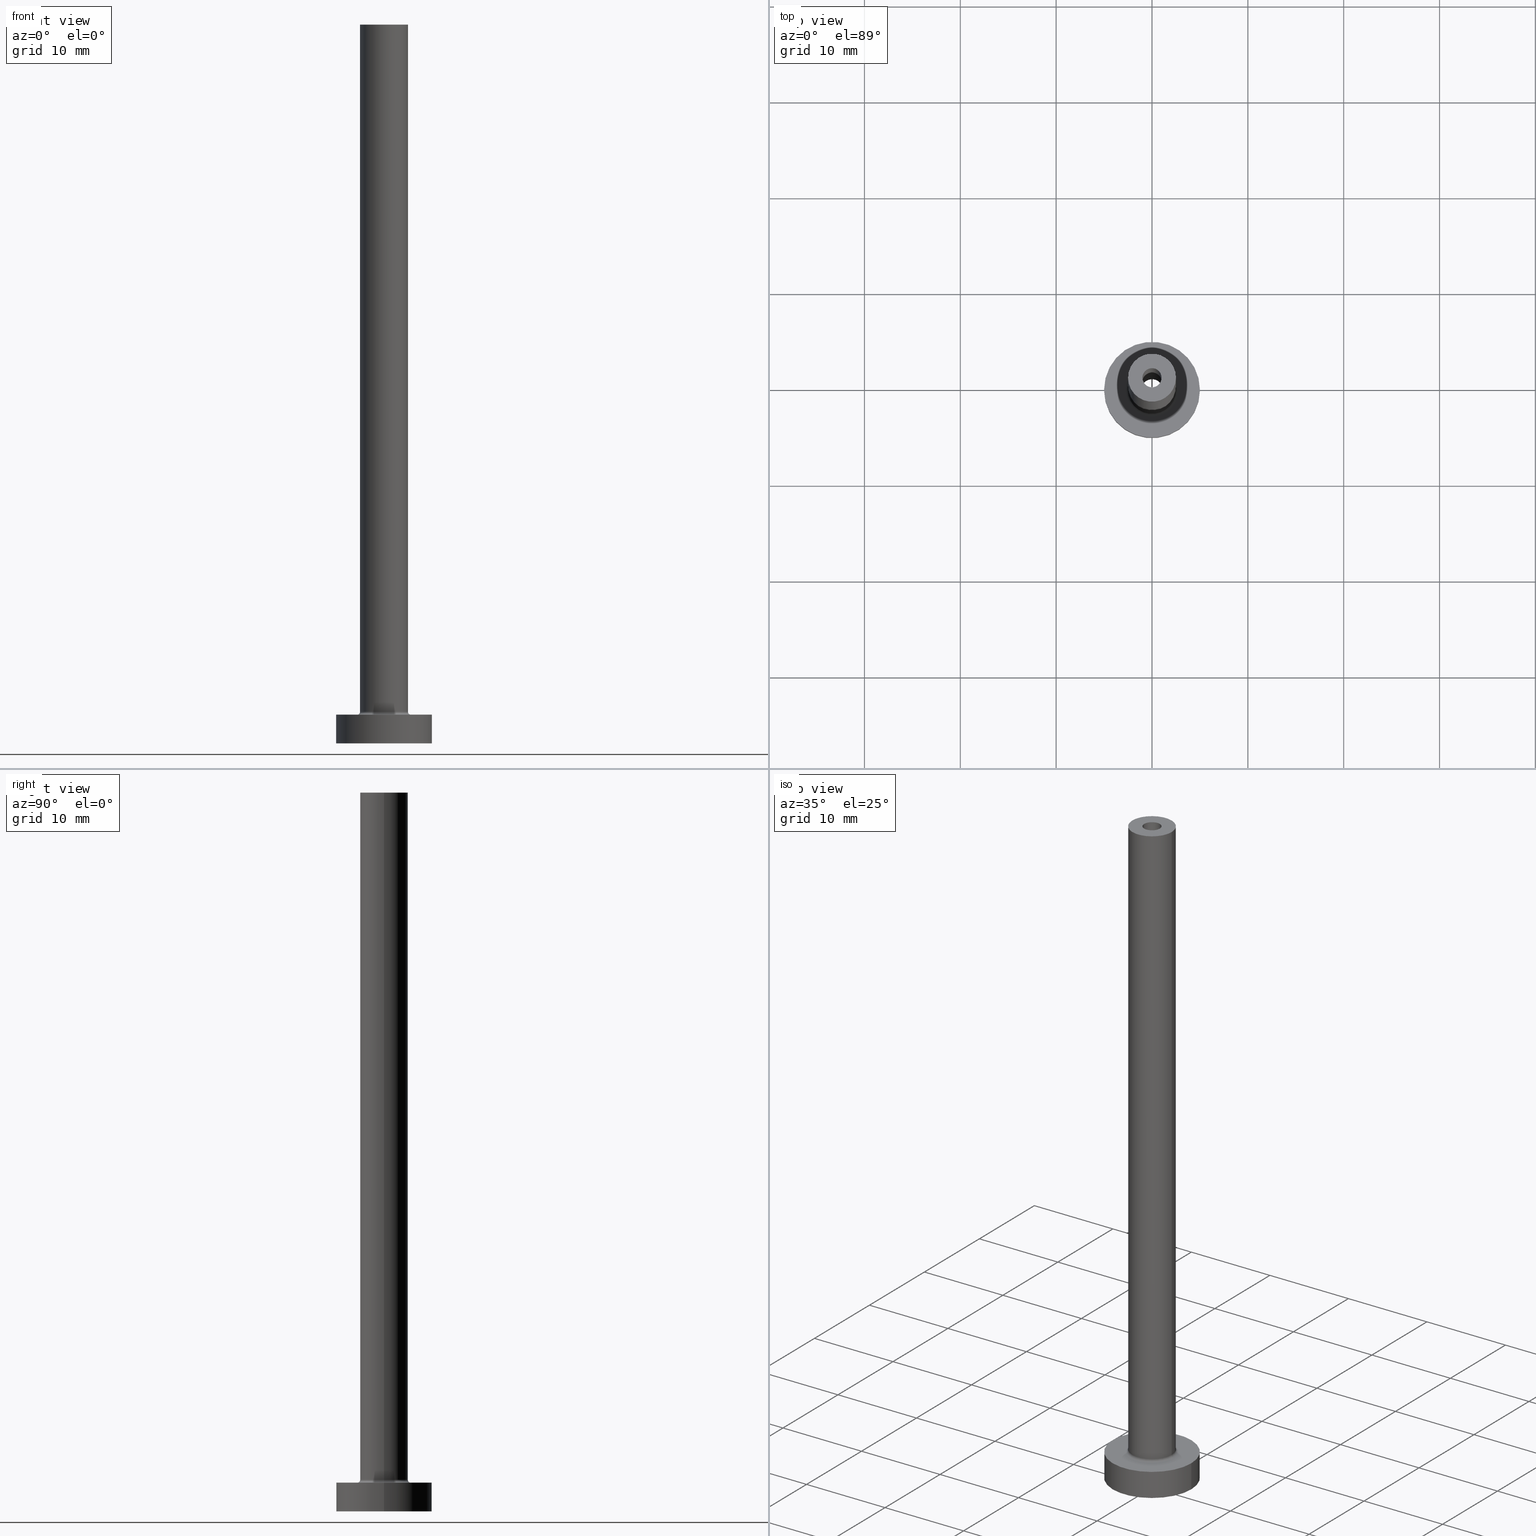
[diagram: canonical four-view strip — front | top / right | iso, engineering-drawing reading convention]
A machine part, canonical four-view strip (front | top / right | iso — engineering-drawing reading convention). The complete STEP part file that produces these views, byte-faithful:
ISO-10303-21;
HEADER;
FILE_DESCRIPTION (( 'STEP AP203' ),
    '1' );
FILE_NAME ('b0e8.STEP',
    '2025-12-03T11:42:33',
    ( '' ),
    ( '' ),
    'SwSTEP 2.0',
    'SolidWorks 2019',
    '' );
FILE_SCHEMA (( 'CONFIG_CONTROL_DESIGN' ));
ENDSEC;

DATA;
#1 = DIRECTION ( 'NONE',  ( 0.000000000000000000, 0.000000000000000000, 1.000000000000000000 ) ) ;
#2 = CARTESIAN_POINT ( 'NONE',  ( 5.000000000000000000, 6.123233995736766282E-16, 3.000000000000000000 ) ) ;
#3 = DIRECTION ( 'NONE',  ( 1.000000000000000000, 0.000000000000000000, -0.000000000000000000 ) ) ;
#4 = LINE ( 'NONE', #353, #279 ) ;
#5 = CC_DESIGN_DATE_AND_TIME_ASSIGNMENT ( #184, #108, ( #321 ) ) ;
#6 = CARTESIAN_POINT ( 'NONE',  ( -5.000000000000000000, 0.000000000000000000, 0.000000000000000000 ) ) ;
#7 = DIRECTION ( 'NONE',  ( 0.000000000000000000, 0.000000000000000000, -1.000000000000000000 ) ) ;
#8 = CIRCLE ( 'NONE', #197, 1.000000000000000000 ) ;
#9 = DIRECTION ( 'NONE',  ( -1.000000000000000000, 0.000000000000000000, 0.000000000000000000 ) ) ;
#10 = EDGE_CURVE ( 'NONE', #285, #47, #221, .T. ) ;
#11 = DIRECTION ( 'NONE',  ( 0.000000000000000000, 0.000000000000000000, 1.000000000000000000 ) ) ;
#12 = ORIENTED_EDGE ( 'NONE', *, *, #452, .F. ) ;
#13 = CC_DESIGN_SECURITY_CLASSIFICATION ( #321, ( #252 ) ) ;
#14 = DIRECTION ( 'NONE',  ( -1.000000000000000000, 0.000000000000000000, 0.000000000000000000 ) ) ;
#15 = ORIENTED_EDGE ( 'NONE', *, *, #437, .F. ) ;
#16 = ORIENTED_EDGE ( 'NONE', *, *, #362, .F. ) ;
#17 = DIRECTION ( 'NONE',  ( -1.000000000000000000, 1.224646799147353207E-16, 0.000000000000000000 ) ) ;
#18 = EDGE_CURVE ( 'NONE', #47, #415, #63, .T. ) ;
#19 = ORIENTED_EDGE ( 'NONE', *, *, #82, .F. ) ;
#20 =( NAMED_UNIT ( * ) SI_UNIT ( $, .STERADIAN. ) SOLID_ANGLE_UNIT ( ) );
#21 = VERTEX_POINT ( 'NONE', #142 ) ;
#22 = VERTEX_POINT ( 'NONE', #382 ) ;
#23 = PERSON_AND_ORGANIZATION ( #355, #455 ) ;
#24 = EDGE_CURVE ( 'NONE', #413, #94, #172, .T. ) ;
#25 = ORIENTED_EDGE ( 'NONE', *, *, #404, .F. ) ;
#26 = CALENDAR_DATE ( 2025, 3, 12 ) ;
#27 = DIRECTION ( 'NONE',  ( -1.000000000000000000, 0.000000000000000000, 0.000000000000000000 ) ) ;
#28 = APPROVAL_DATE_TIME ( #116, #407 ) ;
#29 = DIRECTION ( 'NONE',  ( -0.000000000000000000, -0.000000000000000000, -1.000000000000000000 ) ) ;
#30 = PERSON_AND_ORGANIZATION ( #355, #455 ) ;
#31 = EDGE_LOOP ( 'NONE', ( #91, #229 ) ) ;
#32 = CIRCLE ( 'NONE', #427, 5.000000000000000000 ) ;
#33 = PRODUCT_DEFINITION ( 'NEZN�M�', '', #252, #409 ) ;
#34 = DIRECTION ( 'NONE',  ( 0.000000000000000000, 0.000000000000000000, 1.000000000000000000 ) ) ;
#35 = AXIS2_PLACEMENT_3D ( 'NONE', #80, #431, #42 ) ;
#36 = DIRECTION ( 'NONE',  ( 0.000000000000000000, 0.000000000000000000, 1.000000000000000000 ) ) ;
#37 = DIRECTION ( 'NONE',  ( 0.000000000000000000, 0.000000000000000000, 1.000000000000000000 ) ) ;
#38 = DIRECTION ( 'NONE',  ( -0.000000000000000000, -0.000000000000000000, -1.000000000000000000 ) ) ;
#39 = SECURITY_CLASSIFICATION_LEVEL ( 'unclassified' ) ;
#40 = CC_DESIGN_PERSON_AND_ORGANIZATION_ASSIGNMENT ( #378, #346, ( #384 ) ) ;
#41 = LINE ( 'NONE', #222, #137 ) ;
#42 = DIRECTION ( 'NONE',  ( -1.000000000000000000, 0.000000000000000000, 0.000000000000000000 ) ) ;
#43 = CIRCLE ( 'NONE', #327, 1.149999999999999911 ) ;
#44 = VECTOR ( 'NONE', #441, 1000.000000000000000 ) ;
#45 = LINE ( 'NONE', #326, #293 ) ;
#46 = DIRECTION ( 'NONE',  ( 0.000000000000000000, 0.000000000000000000, 1.000000000000000000 ) ) ;
#47 = VERTEX_POINT ( 'NONE', #278 ) ;
#48 = CARTESIAN_POINT ( 'NONE',  ( 0.000000000000000000, 0.000000000000000000, 75.00000000000001421 ) ) ;
#49 = ORIENTED_EDGE ( 'NONE', *, *, #272, .T. ) ;
#50 = CARTESIAN_POINT ( 'NONE',  ( 0.000000000000000000, 0.000000000000000000, 0.000000000000000000 ) ) ;
#51 = CIRCLE ( 'NONE', #257, 5.000000000000000000 ) ;
#52 = ORIENTED_EDGE ( 'NONE', *, *, #324, .T. ) ;
#53 = ADVANCED_FACE ( 'NONE', ( #151 ), #287, .T. ) ;
#54 = VERTEX_POINT ( 'NONE', #242 ) ;
#55 = CARTESIAN_POINT ( 'NONE',  ( -2.799999999999999822, 3.429011037612588783E-16, 3.299999999999997158 ) ) ;
#56 = EDGE_LOOP ( 'NONE', ( #345, #12 ) ) ;
#57 = LINE ( 'NONE', #411, #44 ) ;
#58 = AXIS2_PLACEMENT_3D ( 'NONE', #103, #149, #387 ) ;
#59 = EDGE_CURVE ( 'NONE', #413, #54, #348, .T. ) ;
#60 = ORIENTED_EDGE ( 'NONE', *, *, #10, .T. ) ;
#61 = APPLICATION_PROTOCOL_DEFINITION ( 'international standard', 'config_control_design', 1994, #294 ) ;
#62 = VERTEX_POINT ( 'NONE', #385 ) ;
#63 = LINE ( 'NONE', #461, #227 ) ;
#64 = MECHANICAL_CONTEXT ( 'NONE', #294, 'mechanical' ) ;
#65 = AXIS2_PLACEMENT_3D ( 'NONE', #177, #38, #210 ) ;
#66 = ORIENTED_EDGE ( 'NONE', *, *, #213, .T. ) ;
#67 = AXIS2_PLACEMENT_3D ( 'NONE', #201, #100, #204 ) ;
#68 = ADVANCED_FACE ( 'NONE', ( #456 ), #429, .T. ) ;
#69 = FACE_OUTER_BOUND ( 'NONE', #152, .T. ) ;
#70 = DIRECTION ( 'NONE',  ( -0.000000000000000000, -0.000000000000000000, -1.000000000000000000 ) ) ;
#71 = COORDINATED_UNIVERSAL_TIME_OFFSET ( 1, 0, .AHEAD. ) ;
#72 = DIRECTION ( 'NONE',  ( 1.000000000000000000, 0.000000000000000000, -0.000000000000000000 ) ) ;
#73 = AXIS2_PLACEMENT_3D ( 'NONE', #322, #392, #389 ) ;
#74 = CARTESIAN_POINT ( 'NONE',  ( 0.000000000000000000, 0.000000000000000000, 75.00000000000001421 ) ) ;
#75 = EDGE_CURVE ( 'NONE', #417, #205, #43, .T. ) ;
#76 = ORIENTED_EDGE ( 'NONE', *, *, #207, .F. ) ;
#77 = FACE_OUTER_BOUND ( 'NONE', #160, .T. ) ;
#78 = PERSON_AND_ORGANIZATION ( #355, #455 ) ;
#79 = DIRECTION ( 'NONE',  ( 1.000000000000000000, 0.000000000000000000, 0.000000000000000000 ) ) ;
#80 = CARTESIAN_POINT ( 'NONE',  ( 0.000000000000000000, 0.000000000000000000, 43.25269119345811930 ) ) ;
#81 = DIRECTION ( 'NONE',  ( 0.000000000000000000, 0.000000000000000000, -1.000000000000000000 ) ) ;
#82 = EDGE_CURVE ( 'NONE', #22, #347, #4, .T. ) ;
#83 = ADVANCED_BREP_SHAPE_REPRESENTATION ( 'b0e8', ( #260, #329 ), #305 ) ;
#84 = FACE_OUTER_BOUND ( 'NONE', #31, .T. ) ;
#85 = ORIENTED_EDGE ( 'NONE', *, *, #161, .T. ) ;
#86 = FACE_OUTER_BOUND ( 'NONE', #167, .T. ) ;
#87 = ORIENTED_EDGE ( 'NONE', *, *, #121, .T. ) ;
#88 = FACE_BOUND ( 'NONE', #129, .T. ) ;
#89 = CC_DESIGN_PERSON_AND_ORGANIZATION_ASSIGNMENT ( #30, #390, ( #321 ) ) ;
#90 = LOCAL_TIME ( 12, 42, 33.00000000000000000, #239 ) ;
#91 = ORIENTED_EDGE ( 'NONE', *, *, #280, .T. ) ;
#92 = CARTESIAN_POINT ( 'NONE',  ( -2.500000000000000000, 0.000000000000000000, 3.299999999999997158 ) ) ;
#93 = UNCERTAINTY_MEASURE_WITH_UNIT (LENGTH_MEASURE( 1.000000000000000082E-05 ), #136, 'distance_accuracy_value', 'NONE');
#94 = VERTEX_POINT ( 'NONE', #105 ) ;
#95 = PERSON_AND_ORGANIZATION ( #355, #455 ) ;
#96 = EDGE_CURVE ( 'NONE', #62, #163, #264, .T. ) ;
#97 = ORIENTED_EDGE ( 'NONE', *, *, #24, .T. ) ;
#98 = DIRECTION ( 'NONE',  ( 0.000000000000000000, 0.000000000000000000, 1.000000000000000000 ) ) ;
#99 = EDGE_LOOP ( 'NONE', ( #166, #203 ) ) ;
#100 = DIRECTION ( 'NONE',  ( 0.000000000000000000, 0.000000000000000000, 1.000000000000000000 ) ) ;
#101 = ORIENTED_EDGE ( 'NONE', *, *, #24, .F. ) ;
#102 = COORDINATED_UNIVERSAL_TIME_OFFSET ( 1, 0, .AHEAD. ) ;
#103 = CARTESIAN_POINT ( 'NONE',  ( 2.799999999999999822, 0.000000000000000000, 3.299999999999997158 ) ) ;
#104 = EDGE_CURVE ( 'NONE', #415, #21, #342, .T. ) ;
#105 = CARTESIAN_POINT ( 'NONE',  ( -5.000000000000000000, 0.000000000000000000, 3.000000000000000000 ) ) ;
#106 = APPROVAL_DATE_TIME ( #243, #251 ) ;
#107 = DIRECTION ( 'NONE',  ( 0.000000000000000000, 0.000000000000000000, 1.000000000000000000 ) ) ;
#108 = DATE_TIME_ROLE ( 'classification_date' ) ;
#109 = CIRCLE ( 'NONE', #457, 2.500000000000000000 ) ;
#110 = CARTESIAN_POINT ( 'NONE',  ( 0.000000000000000000, 0.000000000000000000, 3.299999999999997158 ) ) ;
#111 = ADVANCED_FACE ( 'NONE', ( #458 ), #422, .T. ) ;
#112 = LINE ( 'NONE', #282, #442 ) ;
#113 = COORDINATED_UNIVERSAL_TIME_OFFSET ( 1, 0, .AHEAD. ) ;
#114 = AXIS2_PLACEMENT_3D ( 'NONE', #183, #144, #246 ) ;
#115 = DIRECTION ( 'NONE',  ( 1.000000000000000000, 0.000000000000000000, 0.000000000000000000 ) ) ;
#116 = DATE_AND_TIME ( #288, #155 ) ;
#117 = APPLICATION_CONTEXT ( 'configuration controlled 3d designs of mechanical parts and assemblies' ) ;
#118 = CARTESIAN_POINT ( 'NONE',  ( 2.799999999999999822, 0.000000000000000000, 2.999999999999998668 ) ) ;
#119 = DIRECTION ( 'NONE',  ( 0.000000000000000000, 0.000000000000000000, 1.000000000000000000 ) ) ;
#120 = CYLINDRICAL_SURFACE ( 'NONE', #388, 1.000000000000000000 ) ;
#121 = EDGE_CURVE ( 'NONE', #347, #261, #202, .T. ) ;
#122 = AXIS2_PLACEMENT_3D ( 'NONE', #330, #250, #395 ) ;
#123 = PLANE ( 'NONE',  #309 ) ;
#124 = APPROVAL_PERSON_ORGANIZATION ( #23, #337, #170 ) ;
#125 = FACE_BOUND ( 'NONE', #238, .T. ) ;
#126 = EDGE_LOOP ( 'NONE', ( #135, #169 ) ) ;
#127 = ADVANCED_FACE ( 'NONE', ( #69 ), #302, .F. ) ;
#128 = PLANE ( 'NONE',  #331 ) ;
#129 = EDGE_LOOP ( 'NONE', ( #85, #454 ) ) ;
#130 = ORIENTED_EDGE ( 'NONE', *, *, #404, .T. ) ;
#131 = VECTOR ( 'NONE', #178, 1000.000000000000000 ) ;
#132 = CIRCLE ( 'NONE', #254, 0.2999999999999999334 ) ;
#133 = ORIENTED_EDGE ( 'NONE', *, *, #418, .F. ) ;
#134 = APPROVAL_ROLE ( '' ) ;
#135 = ORIENTED_EDGE ( 'NONE', *, *, #324, .F. ) ;
#136 =( LENGTH_UNIT ( ) NAMED_UNIT ( * ) SI_UNIT ( .MILLI., .METRE. ) );
#137 = VECTOR ( 'NONE', #363, 1000.000000000000000 ) ;
#138 = ORIENTED_EDGE ( 'NONE', *, *, #173, .F. ) ;
#139 = CC_DESIGN_APPROVAL ( #407, ( #321 ) ) ;
#140 = DIRECTION ( 'NONE',  ( 1.000000000000000000, 0.000000000000000000, 0.000000000000000000 ) ) ;
#141 = AXIS2_PLACEMENT_3D ( 'NONE', #364, #228, #14 ) ;
#142 = CARTESIAN_POINT ( 'NONE',  ( -1.000000000000000000, 0.000000000000000000, 40.00000000000000711 ) ) ;
#143 = CIRCLE ( 'NONE', #219, 2.500000000000000000 ) ;
#144 = DIRECTION ( 'NONE',  ( 0.000000000000000000, 0.000000000000000000, 1.000000000000000000 ) ) ;
#145 = PERSON_AND_ORGANIZATION_ROLE ( 'creator' ) ;
#146 = CIRCLE ( 'NONE', #67, 1.149999999999999911 ) ;
#147 = DIRECTION ( 'NONE',  ( 1.000000000000000000, 0.000000000000000000, 0.000000000000000000 ) ) ;
#148 = EDGE_CURVE ( 'NONE', #205, #62, #112, .T. ) ;
#149 = DIRECTION ( 'NONE',  ( 0.000000000000000000, -1.000000000000000000, 0.000000000000000000 ) ) ;
#150 = CARTESIAN_POINT ( 'NONE',  ( -5.000000000000000000, 0.000000000000000000, 3.000000000000000000 ) ) ;
#151 = FACE_OUTER_BOUND ( 'NONE', #275, .T. ) ;
#152 = EDGE_LOOP ( 'NONE', ( #133, #303, #87, #138 ) ) ;
#153 = CIRCLE ( 'NONE', #361, 2.799999999999999822 ) ;
#154 = CARTESIAN_POINT ( 'NONE',  ( 0.000000000000000000, 0.000000000000000000, 0.000000000000000000 ) ) ;
#155 = LOCAL_TIME ( 12, 42, 33.00000000000000000, #113 ) ;
#156 = CARTESIAN_POINT ( 'NONE',  ( 0.000000000000000000, 0.000000000000000000, 3.000000000000000000 ) ) ;
#157 = AXIS2_PLACEMENT_3D ( 'NONE', #48, #162, #438 ) ;
#158 = CARTESIAN_POINT ( 'NONE',  ( 1.000000000000000000, 1.224646799147353207E-16, 40.00000000000000711 ) ) ;
#159 = CARTESIAN_POINT ( 'NONE',  ( 2.500000000000000000, 3.061616997868383141E-16, 3.299999999999997158 ) ) ;
#160 = EDGE_LOOP ( 'NONE', ( #101, #449, #312, #25 ) ) ;
#161 = EDGE_CURVE ( 'NONE', #261, #372, #460, .T. ) ;
#162 = DIRECTION ( 'NONE',  ( 0.000000000000000000, 0.000000000000000000, -1.000000000000000000 ) ) ;
#163 = VERTEX_POINT ( 'NONE', #396 ) ;
#164 = ORIENTED_EDGE ( 'NONE', *, *, #286, .T. ) ;
#165 = DIRECTION ( 'NONE',  ( 0.000000000000000000, 0.000000000000000000, 1.000000000000000000 ) ) ;
#166 = ORIENTED_EDGE ( 'NONE', *, *, #224, .F. ) ;
#167 = EDGE_LOOP ( 'NONE', ( #16, #406, #451, #268 ) ) ;
#168 = PERSON_AND_ORGANIZATION ( #355, #455 ) ;
#169 = ORIENTED_EDGE ( 'NONE', *, *, #267, .F. ) ;
#170 = APPROVAL_ROLE ( '' ) ;
#171 = ORIENTED_EDGE ( 'NONE', *, *, #75, .T. ) ;
#172 = CIRCLE ( 'NONE', #114, 5.000000000000000000 ) ;
#173 = EDGE_CURVE ( 'NONE', #372, #261, #153, .T. ) ;
#174 = DIRECTION ( 'NONE',  ( -0.000000000000000000, -0.000000000000000000, -1.000000000000000000 ) ) ;
#175 = CALENDAR_DATE ( 2025, 3, 12 ) ;
#176 = CARTESIAN_POINT ( 'NONE',  ( 0.000000000000000000, 0.000000000000000000, 0.000000000000000000 ) ) ;
#177 = CARTESIAN_POINT ( 'NONE',  ( 0.000000000000000000, 0.000000000000000000, 75.00000000000001421 ) ) ;
#178 = DIRECTION ( 'NONE',  ( -0.000000000000000000, -0.000000000000000000, -1.000000000000000000 ) ) ;
#179 = AXIS2_PLACEMENT_3D ( 'NONE', #74, #36, #115 ) ;
#180 = DIRECTION ( 'NONE',  ( 0.000000000000000000, 0.000000000000000000, 1.000000000000000000 ) ) ;
#181 = APPROVAL_PERSON_ORGANIZATION ( #168, #251, #134 ) ;
#182 = FACE_OUTER_BOUND ( 'NONE', #240, .T. ) ;
#183 = CARTESIAN_POINT ( 'NONE',  ( 0.000000000000000000, 0.000000000000000000, 3.000000000000000000 ) ) ;
#184 = DATE_AND_TIME ( #175, #352 ) ;
#185 = CYLINDRICAL_SURFACE ( 'NONE', #35, 1.149999999999999911 ) ;
#186 = EDGE_CURVE ( 'NONE', #94, #413, #51, .T. ) ;
#187 = AXIS2_PLACEMENT_3D ( 'NONE', #253, #328, #147 ) ;
#188 = CARTESIAN_POINT ( 'NONE',  ( 0.000000000000000000, 0.000000000000000000, 3.000000000000000000 ) ) ;
#189 = LOCAL_TIME ( 12, 42, 33.00000000000000000, #102 ) ;
#190 = CARTESIAN_POINT ( 'NONE',  ( 1.149999999999999911, 1.408343819019456028E-16, 40.00000000000000711 ) ) ;
#191 = CARTESIAN_POINT ( 'NONE',  ( 0.000000000000000000, 0.000000000000000000, 40.00000000000000711 ) ) ;
#192 = DIRECTION ( 'NONE',  ( 1.000000000000000000, 0.000000000000000000, 0.000000000000000000 ) ) ;
#193 = ADVANCED_FACE ( 'NONE', ( #399 ), #185, .F. ) ;
#194 = CIRCLE ( 'NONE', #453, 5.000000000000000000 ) ;
#195 = DIRECTION ( 'NONE',  ( 1.000000000000000000, 0.000000000000000000, 0.000000000000000000 ) ) ;
#196 = EDGE_LOOP ( 'NONE', ( #380, #97 ) ) ;
#197 = AXIS2_PLACEMENT_3D ( 'NONE', #191, #405, #365 ) ;
#198 = ORIENTED_EDGE ( 'NONE', *, *, #186, .F. ) ;
#199 = DIRECTION ( 'NONE',  ( 1.000000000000000000, 0.000000000000000000, -0.000000000000000000 ) ) ;
#200 = ORIENTED_EDGE ( 'NONE', *, *, #280, .F. ) ;
#201 = CARTESIAN_POINT ( 'NONE',  ( 0.000000000000000000, 0.000000000000000000, 40.00000000000000711 ) ) ;
#202 = CIRCLE ( 'NONE', #58, 0.2999999999999999334 ) ;
#203 = ORIENTED_EDGE ( 'NONE', *, *, #96, .F. ) ;
#204 = DIRECTION ( 'NONE',  ( 1.000000000000000000, 0.000000000000000000, 0.000000000000000000 ) ) ;
#205 = VERTEX_POINT ( 'NONE', #190 ) ;
#206 = CARTESIAN_POINT ( 'NONE',  ( 0.000000000000000000, 0.000000000000000000, 0.000000000000000000 ) ) ;
#207 = EDGE_CURVE ( 'NONE', #417, #163, #41, .T. ) ;
#208 = DIRECTION ( 'NONE',  ( 0.000000000000000000, 0.000000000000000000, -1.000000000000000000 ) ) ;
#209 = CARTESIAN_POINT ( 'NONE',  ( 0.000000000000000000, 0.000000000000000000, 40.00000000000000711 ) ) ;
#210 = DIRECTION ( 'NONE',  ( -1.000000000000000000, 0.000000000000000000, 0.000000000000000000 ) ) ;
#211 = APPROVAL_STATUS ( 'not_yet_approved' ) ;
#212 = TOROIDAL_SURFACE ( 'NONE', #269, 2.799999999999999822, 0.2999999999999999889 ) ;
#213 = EDGE_CURVE ( 'NONE', #285, #21, #45, .T. ) ;
#214 = DIRECTION ( 'NONE',  ( 1.000000000000000000, 0.000000000000000000, 0.000000000000000000 ) ) ;
#215 = PERSON_AND_ORGANIZATION ( #355, #455 ) ;
#216 = FACE_OUTER_BOUND ( 'NONE', #196, .T. ) ;
#217 = ORIENTED_EDGE ( 'NONE', *, *, #452, .T. ) ;
#218 = DIRECTION ( 'NONE',  ( -0.000000000000000000, -0.000000000000000000, -1.000000000000000000 ) ) ;
#219 = AXIS2_PLACEMENT_3D ( 'NONE', #110, #37, #262 ) ;
#220 = CYLINDRICAL_SURFACE ( 'NONE', #393, 5.000000000000000000 ) ;
#221 = CIRCLE ( 'NONE', #179, 1.000000000000000000 ) ;
#222 = CARTESIAN_POINT ( 'NONE',  ( -1.149999999999999911, 0.000000000000000000, 43.25269119345811930 ) ) ;
#223 = PLANE ( 'NONE',  #448 ) ;
#224 = EDGE_CURVE ( 'NONE', #163, #62, #314, .T. ) ;
#225 = CARTESIAN_POINT ( 'NONE',  ( 0.000000000000000000, 0.000000000000000000, 75.00000000000001421 ) ) ;
#226 = CARTESIAN_POINT ( 'NONE',  ( 0.000000000000000000, 0.000000000000000000, 0.000000000000000000 ) ) ;
#227 = VECTOR ( 'NONE', #208, 1000.000000000000000 ) ;
#228 = DIRECTION ( 'NONE',  ( 0.000000000000000000, 0.000000000000000000, -1.000000000000000000 ) ) ;
#229 = ORIENTED_EDGE ( 'NONE', *, *, #432, .T. ) ;
#230 = APPROVAL_DATE_TIME ( #241, #337 ) ;
#231 = CC_DESIGN_DATE_AND_TIME_ASSIGNMENT ( #376, #374, ( #33 ) ) ;
#232 = EDGE_LOOP ( 'NONE', ( #19, #200, #440, #398 ) ) ;
#233 = DIRECTION ( 'NONE',  ( 0.000000000000000000, 0.000000000000000000, 1.000000000000000000 ) ) ;
#234 = ORIENTED_EDGE ( 'NONE', *, *, #59, .F. ) ;
#235 = AXIS2_PLACEMENT_3D ( 'NONE', #354, #34, #319 ) ;
#236 = CC_DESIGN_APPROVAL ( #251, ( #252 ) ) ;
#237 = ADVANCED_FACE ( 'NONE', ( #77 ), #220, .T. ) ;
#238 = EDGE_LOOP ( 'NONE', ( #428, #300 ) ) ;
#239 = COORDINATED_UNIVERSAL_TIME_OFFSET ( 1, 0, .AHEAD. ) ;
#240 = EDGE_LOOP ( 'NONE', ( #265, #217, #298, #377 ) ) ;
#241 = DATE_AND_TIME ( #420, #90 ) ;
#242 = CARTESIAN_POINT ( 'NONE',  ( 5.000000000000000000, 6.123233995736766282E-16, 0.000000000000000000 ) ) ;
#243 = DATE_AND_TIME ( #450, #274 ) ;
#244 = DIRECTION ( 'NONE',  ( -0.000000000000000000, -0.000000000000000000, -1.000000000000000000 ) ) ;
#245 = CC_DESIGN_PERSON_AND_ORGANIZATION_ASSIGNMENT ( #318, #423, ( #252 ) ) ;
#246 = DIRECTION ( 'NONE',  ( 1.000000000000000000, 0.000000000000000000, 0.000000000000000000 ) ) ;
#247 = FACE_OUTER_BOUND ( 'NONE', #126, .T. ) ;
#248 = VERTEX_POINT ( 'NONE', #6 ) ;
#249 = CIRCLE ( 'NONE', #187, 1.000000000000000000 ) ;
#250 = DIRECTION ( 'NONE',  ( -0.000000000000000000, -0.000000000000000000, -1.000000000000000000 ) ) ;
#251 = APPROVAL ( #307, 'NEUR�EN�' ) ;
#252 = PRODUCT_DEFINITION_FORMATION_WITH_SPECIFIED_SOURCE ( 'LIBOVOLN�', '', #384, .NOT_KNOWN. ) ;
#253 = CARTESIAN_POINT ( 'NONE',  ( 0.000000000000000000, 0.000000000000000000, 75.00000000000001421 ) ) ;
#254 = AXIS2_PLACEMENT_3D ( 'NONE', #55, #444, #17 ) ;
#255 = DIRECTION ( 'NONE',  ( 1.000000000000000000, 0.000000000000000000, 0.000000000000000000 ) ) ;
#256 = CARTESIAN_POINT ( 'NONE',  ( 0.000000000000000000, 0.000000000000000000, 75.00000000000001421 ) ) ;
#257 = AXIS2_PLACEMENT_3D ( 'NONE', #290, #119, #255 ) ;
#258 = CYLINDRICAL_SURFACE ( 'NONE', #157, 1.000000000000000000 ) ;
#259 = EDGE_LOOP ( 'NONE', ( #171, #375, #296, #76 ) ) ;
#260 = MANIFOLD_SOLID_BREP ( 'Odebrat vysunut�m4', #424 ) ;
#261 = VERTEX_POINT ( 'NONE', #118 ) ;
#262 = DIRECTION ( 'NONE',  ( 1.000000000000000000, 0.000000000000000000, 0.000000000000000000 ) ) ;
#263 = CYLINDRICAL_SURFACE ( 'NONE', #141, 1.149999999999999911 ) ;
#264 = CIRCLE ( 'NONE', #386, 1.149999999999999911 ) ;
#265 = ORIENTED_EDGE ( 'NONE', *, *, #148, .F. ) ;
#266 = DIRECTION ( 'NONE',  ( 1.000000000000000000, 0.000000000000000000, 0.000000000000000000 ) ) ;
#267 = EDGE_CURVE ( 'NONE', #54, #248, #194, .T. ) ;
#268 = ORIENTED_EDGE ( 'NONE', *, *, #121, .F. ) ;
#269 = AXIS2_PLACEMENT_3D ( 'NONE', #366, #426, #195 ) ;
#270 = EDGE_LOOP ( 'NONE', ( #310, #49, #66, #273 ) ) ;
#271 = CARTESIAN_POINT ( 'NONE',  ( 0.000000000000000000, 0.000000000000000000, 40.00000000000000711 ) ) ;
#272 = EDGE_CURVE ( 'NONE', #47, #285, #249, .T. ) ;
#273 = ORIENTED_EDGE ( 'NONE', *, *, #104, .F. ) ;
#274 = LOCAL_TIME ( 12, 42, 33.00000000000000000, #311 ) ;
#275 = EDGE_LOOP ( 'NONE', ( #343, #306, #164, #15 ) ) ;
#276 = PERSON_AND_ORGANIZATION_ROLE ( 'creator' ) ;
#277 = CARTESIAN_POINT ( 'NONE',  ( 0.000000000000000000, 0.000000000000000000, 3.000000000000000000 ) ) ;
#278 = CARTESIAN_POINT ( 'NONE',  ( 1.000000000000000000, 1.224646799147353207E-16, 75.00000000000001421 ) ) ;
#279 = VECTOR ( 'NONE', #29, 1000.000000000000000 ) ;
#280 = EDGE_CURVE ( 'NONE', #340, #22, #369, .T. ) ;
#281 = VECTOR ( 'NONE', #70, 1000.000000000000000 ) ;
#282 = CARTESIAN_POINT ( 'NONE',  ( 1.149999999999999911, 1.408343819019456028E-16, 43.25269119345811930 ) ) ;
#283 = APPROVAL_ROLE ( '' ) ;
#284 = CARTESIAN_POINT ( 'NONE',  ( 0.000000000000000000, 0.000000000000000000, 75.00000000000001421 ) ) ;
#285 = VERTEX_POINT ( 'NONE', #295 ) ;
#286 = EDGE_CURVE ( 'NONE', #347, #443, #143, .T. ) ;
#287 = CYLINDRICAL_SURFACE ( 'NONE', #65, 2.500000000000000000 ) ;
#288 = CALENDAR_DATE ( 2025, 3, 12 ) ;
#289 = DIRECTION ( 'NONE',  ( 1.000000000000000000, 0.000000000000000000, 0.000000000000000000 ) ) ;
#290 = CARTESIAN_POINT ( 'NONE',  ( 0.000000000000000000, 0.000000000000000000, 3.000000000000000000 ) ) ;
#291 = CARTESIAN_POINT ( 'NONE',  ( 5.000000000000000000, 6.123233995736766282E-16, 3.000000000000000000 ) ) ;
#292 = CARTESIAN_POINT ( 'NONE',  ( -1.149999999999999911, 0.000000000000000000, 40.00000000000000711 ) ) ;
#293 = VECTOR ( 'NONE', #7, 1000.000000000000000 ) ;
#294 = APPLICATION_CONTEXT ( 'configuration controlled 3d designs of mechanical parts and assemblies' ) ;
#295 = CARTESIAN_POINT ( 'NONE',  ( -1.000000000000000000, 0.000000000000000000, 75.00000000000001421 ) ) ;
#296 = ORIENTED_EDGE ( 'NONE', *, *, #96, .T. ) ;
#297 = CARTESIAN_POINT ( 'NONE',  ( -2.799999999999999822, 3.429011037612589276E-16, 2.999999999999998668 ) ) ;
#298 = ORIENTED_EDGE ( 'NONE', *, *, #207, .T. ) ;
#299 = ADVANCED_FACE ( 'NONE', ( #125, #84 ), #223, .T. ) ;
#300 = ORIENTED_EDGE ( 'NONE', *, *, #272, .F. ) ;
#301 = CARTESIAN_POINT ( 'NONE',  ( 0.000000000000000000, 0.000000000000000000, 75.00000000000001421 ) ) ;
#302 = TOROIDAL_SURFACE ( 'NONE', #235, 2.799999999999999822, 0.2999999999999999889 ) ;
#303 = ORIENTED_EDGE ( 'NONE', *, *, #286, .F. ) ;
#304 = FACE_OUTER_BOUND ( 'NONE', #56, .T. ) ;
#305 =( GEOMETRIC_REPRESENTATION_CONTEXT ( 3 ) GLOBAL_UNCERTAINTY_ASSIGNED_CONTEXT ( ( #93 ) ) GLOBAL_UNIT_ASSIGNED_CONTEXT ( ( #136, #341, #20 ) ) REPRESENTATION_CONTEXT ( 'NONE', 'WORKASPACE' ) );
#306 = ORIENTED_EDGE ( 'NONE', *, *, #82, .T. ) ;
#307 = APPROVAL_STATUS ( 'not_yet_approved' ) ;
#308 = ADVANCED_FACE ( 'NONE', ( #182 ), #263, .F. ) ;
#309 = AXIS2_PLACEMENT_3D ( 'NONE', #357, #11, #3 ) ;
#310 = ORIENTED_EDGE ( 'NONE', *, *, #18, .F. ) ;
#311 = COORDINATED_UNIVERSAL_TIME_OFFSET ( 1, 0, .AHEAD. ) ;
#312 = ORIENTED_EDGE ( 'NONE', *, *, #267, .T. ) ;
#313 = PLANE ( 'NONE',  #371 ) ;
#314 = CIRCLE ( 'NONE', #122, 1.149999999999999911 ) ;
#315 = CARTESIAN_POINT ( 'NONE',  ( 0.000000000000000000, 0.000000000000000000, 40.00000000000000711 ) ) ;
#316 = CC_DESIGN_PERSON_AND_ORGANIZATION_ASSIGNMENT ( #95, #276, ( #33 ) ) ;
#317 = DIRECTION ( 'NONE',  ( 1.000000000000000000, 0.000000000000000000, 0.000000000000000000 ) ) ;
#318 = PERSON_AND_ORGANIZATION ( #355, #455 ) ;
#319 = DIRECTION ( 'NONE',  ( 1.000000000000000000, 0.000000000000000000, 0.000000000000000000 ) ) ;
#320 = DIRECTION ( 'NONE',  ( 0.000000000000000000, 0.000000000000000000, 1.000000000000000000 ) ) ;
#321 = SECURITY_CLASSIFICATION ( '', '', #39 ) ;
#322 = CARTESIAN_POINT ( 'NONE',  ( 0.000000000000000000, 0.000000000000000000, 3.000000000000000000 ) ) ;
#323 = CARTESIAN_POINT ( 'NONE',  ( -2.500000000000000000, 0.000000000000000000, 75.00000000000001421 ) ) ;
#324 = EDGE_CURVE ( 'NONE', #248, #54, #32, .T. ) ;
#325 = DIRECTION ( 'NONE',  ( -0.000000000000000000, -0.000000000000000000, -1.000000000000000000 ) ) ;
#326 = CARTESIAN_POINT ( 'NONE',  ( -1.000000000000000000, 0.000000000000000000, 75.00000000000001421 ) ) ;
#327 = AXIS2_PLACEMENT_3D ( 'NONE', #209, #107, #317 ) ;
#328 = DIRECTION ( 'NONE',  ( 0.000000000000000000, 0.000000000000000000, 1.000000000000000000 ) ) ;
#329 = AXIS2_PLACEMENT_3D ( 'NONE', #206, #233, #266 ) ;
#330 = CARTESIAN_POINT ( 'NONE',  ( 0.000000000000000000, 0.000000000000000000, 0.000000000000000000 ) ) ;
#331 = AXIS2_PLACEMENT_3D ( 'NONE', #226, #391, #333 ) ;
#332 = CC_DESIGN_PERSON_AND_ORGANIZATION_ASSIGNMENT ( #78, #145, ( #252 ) ) ;
#333 = DIRECTION ( 'NONE',  ( 1.000000000000000000, 0.000000000000000000, -0.000000000000000000 ) ) ;
#334 = FACE_BOUND ( 'NONE', #99, .T. ) ;
#335 = DIRECTION ( 'NONE',  ( 0.000000000000000000, 0.000000000000000000, 1.000000000000000000 ) ) ;
#336 = CC_DESIGN_APPROVAL ( #337, ( #33 ) ) ;
#337 = APPROVAL ( #344, 'NEUR�EN�' ) ;
#338 = ORIENTED_EDGE ( 'NONE', *, *, #213, .F. ) ;
#339 = ORIENTED_EDGE ( 'NONE', *, *, #356, .T. ) ;
#340 = VERTEX_POINT ( 'NONE', #323 ) ;
#341 =( NAMED_UNIT ( * ) PLANE_ANGLE_UNIT ( ) SI_UNIT ( $, .RADIAN. ) );
#342 = CIRCLE ( 'NONE', #436, 1.000000000000000000 ) ;
#343 = ORIENTED_EDGE ( 'NONE', *, *, #432, .F. ) ;
#344 = APPROVAL_STATUS ( 'not_yet_approved' ) ;
#345 = ORIENTED_EDGE ( 'NONE', *, *, #75, .F. ) ;
#346 = PERSON_AND_ORGANIZATION_ROLE ( 'design_owner' ) ;
#347 = VERTEX_POINT ( 'NONE', #159 ) ;
#348 = LINE ( 'NONE', #2, #281 ) ;
#349 = SHAPE_DEFINITION_REPRESENTATION ( #459, #83 ) ;
#350 = AXIS2_PLACEMENT_3D ( 'NONE', #358, #325, #27 ) ;
#351 = ADVANCED_FACE ( 'NONE', ( #88, #216 ), #123, .T. ) ;
#352 = LOCAL_TIME ( 12, 42, 33.00000000000000000, #71 ) ;
#353 = CARTESIAN_POINT ( 'NONE',  ( 2.500000000000000000, 3.061616997868383141E-16, 75.00000000000001421 ) ) ;
#354 = CARTESIAN_POINT ( 'NONE',  ( 0.000000000000000000, 0.000000000000000000, 3.299999999999997158 ) ) ;
#355 = PERSON ( 'NEUR�EN�', 'NEUR�EN�', 'NEUR�EN�', ('NEUR�EN�'), ('NEUR�EN�'), ('NEUR�EN�') ) ;
#356 = EDGE_CURVE ( 'NONE', #21, #415, #8, .T. ) ;
#357 = CARTESIAN_POINT ( 'NONE',  ( 0.000000000000000000, 0.000000000000000000, 3.000000000000000000 ) ) ;
#358 = CARTESIAN_POINT ( 'NONE',  ( 0.000000000000000000, 0.000000000000000000, 75.00000000000001421 ) ) ;
#359 = DIRECTION ( 'NONE',  ( -1.000000000000000000, 0.000000000000000000, 0.000000000000000000 ) ) ;
#360 = DIRECTION ( 'NONE',  ( 0.000000000000000000, 0.000000000000000000, 1.000000000000000000 ) ) ;
#361 = AXIS2_PLACEMENT_3D ( 'NONE', #188, #433, #79 ) ;
#362 = EDGE_CURVE ( 'NONE', #443, #347, #109, .T. ) ;
#363 = DIRECTION ( 'NONE',  ( 0.000000000000000000, 0.000000000000000000, -1.000000000000000000 ) ) ;
#364 = CARTESIAN_POINT ( 'NONE',  ( 0.000000000000000000, 0.000000000000000000, 43.25269119345811930 ) ) ;
#365 = DIRECTION ( 'NONE',  ( 1.000000000000000000, 0.000000000000000000, 0.000000000000000000 ) ) ;
#366 = CARTESIAN_POINT ( 'NONE',  ( 0.000000000000000000, 0.000000000000000000, 3.299999999999997158 ) ) ;
#367 = ADVANCED_FACE ( 'NONE', ( #400 ), #258, .F. ) ;
#368 = ORIENTED_EDGE ( 'NONE', *, *, #356, .F. ) ;
#369 = CIRCLE ( 'NONE', #430, 2.500000000000000000 ) ;
#370 = CARTESIAN_POINT ( 'NONE',  ( 0.000000000000000000, 0.000000000000000000, 3.299999999999997158 ) ) ;
#371 = AXIS2_PLACEMENT_3D ( 'NONE', #271, #98, #199 ) ;
#372 = VERTEX_POINT ( 'NONE', #297 ) ;
#373 = ORIENTED_EDGE ( 'NONE', *, *, #18, .T. ) ;
#374 = DATE_TIME_ROLE ( 'creation_date' ) ;
#375 = ORIENTED_EDGE ( 'NONE', *, *, #148, .T. ) ;
#376 = DATE_AND_TIME ( #26, #189 ) ;
#377 = ORIENTED_EDGE ( 'NONE', *, *, #224, .T. ) ;
#378 = PERSON_AND_ORGANIZATION ( #355, #455 ) ;
#379 = APPROVAL_PERSON_ORGANIZATION ( #215, #407, #283 ) ;
#380 = ORIENTED_EDGE ( 'NONE', *, *, #186, .T. ) ;
#381 = APPLICATION_PROTOCOL_DEFINITION ( 'international standard', 'config_control_design', 1994, #117 ) ;
#382 = CARTESIAN_POINT ( 'NONE',  ( 2.500000000000000000, 3.061616997868383141E-16, 75.00000000000001421 ) ) ;
#383 = ADVANCED_FACE ( 'NONE', ( #86 ), #212, .F. ) ;
#384 = PRODUCT ( 'b0e8', 'b0e8', '', ( #64 ) ) ;
#385 = CARTESIAN_POINT ( 'NONE',  ( 1.149999999999999911, 1.408343819019456028E-16, 0.000000000000000000 ) ) ;
#386 = AXIS2_PLACEMENT_3D ( 'NONE', #176, #174, #214 ) ;
#387 = DIRECTION ( 'NONE',  ( 0.000000000000000000, 0.000000000000000000, -1.000000000000000000 ) ) ;
#388 = AXIS2_PLACEMENT_3D ( 'NONE', #256, #81, #9 ) ;
#389 = DIRECTION ( 'NONE',  ( 1.000000000000000000, 0.000000000000000000, 0.000000000000000000 ) ) ;
#390 = PERSON_AND_ORGANIZATION_ROLE ( 'classification_officer' ) ;
#391 = DIRECTION ( 'NONE',  ( 0.000000000000000000, 0.000000000000000000, 1.000000000000000000 ) ) ;
#392 = DIRECTION ( 'NONE',  ( -0.000000000000000000, -0.000000000000000000, -1.000000000000000000 ) ) ;
#393 = AXIS2_PLACEMENT_3D ( 'NONE', #156, #218, #359 ) ;
#394 = CIRCLE ( 'NONE', #412, 2.500000000000000000 ) ;
#395 = DIRECTION ( 'NONE',  ( 1.000000000000000000, 0.000000000000000000, 0.000000000000000000 ) ) ;
#396 = CARTESIAN_POINT ( 'NONE',  ( -1.149999999999999911, 0.000000000000000000, 0.000000000000000000 ) ) ;
#397 = ADVANCED_FACE ( 'NONE', ( #334, #247 ), #128, .F. ) ;
#398 = ORIENTED_EDGE ( 'NONE', *, *, #362, .T. ) ;
#399 = FACE_OUTER_BOUND ( 'NONE', #259, .T. ) ;
#400 = FACE_OUTER_BOUND ( 'NONE', #270, .T. ) ;
#401 = AXIS2_PLACEMENT_3D ( 'NONE', #277, #244, #421 ) ;
#402 = DIRECTION ( 'NONE',  ( 1.000000000000000000, 0.000000000000000000, 0.000000000000000000 ) ) ;
#403 = EDGE_LOOP ( 'NONE', ( #60, #373, #368, #338 ) ) ;
#404 = EDGE_CURVE ( 'NONE', #94, #248, #408, .T. ) ;
#405 = DIRECTION ( 'NONE',  ( 0.000000000000000000, 0.000000000000000000, 1.000000000000000000 ) ) ;
#406 = ORIENTED_EDGE ( 'NONE', *, *, #418, .T. ) ;
#407 = APPROVAL ( #211, 'NEUR�EN�' ) ;
#408 = LINE ( 'NONE', #150, #131 ) ;
#409 = DESIGN_CONTEXT ( 'detailed design', #117, 'design' ) ;
#410 = ORIENTED_EDGE ( 'NONE', *, *, #104, .T. ) ;
#411 = CARTESIAN_POINT ( 'NONE',  ( -2.500000000000000000, 0.000000000000000000, 75.00000000000001421 ) ) ;
#412 = AXIS2_PLACEMENT_3D ( 'NONE', #301, #165, #447 ) ;
#413 = VERTEX_POINT ( 'NONE', #291 ) ;
#414 = ADVANCED_FACE ( 'NONE', ( #434 ), #120, .F. ) ;
#415 = VERTEX_POINT ( 'NONE', #158 ) ;
#416 = FACE_BOUND ( 'NONE', #446, .T. ) ;
#417 = VERTEX_POINT ( 'NONE', #292 ) ;
#418 = EDGE_CURVE ( 'NONE', #443, #372, #132, .T. ) ;
#419 = EDGE_LOOP ( 'NONE', ( #234, #198, #130, #52 ) ) ;
#420 = CALENDAR_DATE ( 2025, 3, 12 ) ;
#421 = DIRECTION ( 'NONE',  ( -1.000000000000000000, 0.000000000000000000, 0.000000000000000000 ) ) ;
#422 = CYLINDRICAL_SURFACE ( 'NONE', #401, 5.000000000000000000 ) ;
#423 = PERSON_AND_ORGANIZATION_ROLE ( 'design_supplier' ) ;
#424 = CLOSED_SHELL ( 'NONE', ( #414, #193, #383, #53, #237, #111, #351, #397, #68, #299, #127, #308, #445, #367 ) ) ;
#425 = DIRECTION ( 'NONE',  ( 0.000000000000000000, 0.000000000000000000, -1.000000000000000000 ) ) ;
#426 = DIRECTION ( 'NONE',  ( 0.000000000000000000, 0.000000000000000000, 1.000000000000000000 ) ) ;
#427 = AXIS2_PLACEMENT_3D ( 'NONE', #50, #46, #435 ) ;
#428 = ORIENTED_EDGE ( 'NONE', *, *, #10, .F. ) ;
#429 = CYLINDRICAL_SURFACE ( 'NONE', #350, 2.500000000000000000 ) ;
#430 = AXIS2_PLACEMENT_3D ( 'NONE', #225, #1, #402 ) ;
#431 = DIRECTION ( 'NONE',  ( 0.000000000000000000, 0.000000000000000000, -1.000000000000000000 ) ) ;
#432 = EDGE_CURVE ( 'NONE', #22, #340, #394, .T. ) ;
#433 = DIRECTION ( 'NONE',  ( -0.000000000000000000, -0.000000000000000000, -1.000000000000000000 ) ) ;
#434 = FACE_OUTER_BOUND ( 'NONE', #403, .T. ) ;
#435 = DIRECTION ( 'NONE',  ( 1.000000000000000000, 0.000000000000000000, 0.000000000000000000 ) ) ;
#436 = AXIS2_PLACEMENT_3D ( 'NONE', #315, #180, #140 ) ;
#437 = EDGE_CURVE ( 'NONE', #340, #443, #57, .T. ) ;
#438 = DIRECTION ( 'NONE',  ( -1.000000000000000000, 0.000000000000000000, 0.000000000000000000 ) ) ;
#439 = PRODUCT_RELATED_PRODUCT_CATEGORY ( 'detail', '', ( #384 ) ) ;
#440 = ORIENTED_EDGE ( 'NONE', *, *, #437, .T. ) ;
#441 = DIRECTION ( 'NONE',  ( -0.000000000000000000, -0.000000000000000000, -1.000000000000000000 ) ) ;
#442 = VECTOR ( 'NONE', #425, 1000.000000000000000 ) ;
#443 = VERTEX_POINT ( 'NONE', #92 ) ;
#444 = DIRECTION ( 'NONE',  ( 1.224646799147353207E-16, 1.000000000000000000, -0.000000000000000000 ) ) ;
#445 = ADVANCED_FACE ( 'NONE', ( #416, #304 ), #313, .F. ) ;
#446 = EDGE_LOOP ( 'NONE', ( #339, #410 ) ) ;
#447 = DIRECTION ( 'NONE',  ( 1.000000000000000000, 0.000000000000000000, 0.000000000000000000 ) ) ;
#448 = AXIS2_PLACEMENT_3D ( 'NONE', #284, #320, #72 ) ;
#449 = ORIENTED_EDGE ( 'NONE', *, *, #59, .T. ) ;
#450 = CALENDAR_DATE ( 2025, 3, 12 ) ;
#451 = ORIENTED_EDGE ( 'NONE', *, *, #161, .F. ) ;
#452 = EDGE_CURVE ( 'NONE', #205, #417, #146, .T. ) ;
#453 = AXIS2_PLACEMENT_3D ( 'NONE', #154, #360, #289 ) ;
#454 = ORIENTED_EDGE ( 'NONE', *, *, #173, .T. ) ;
#455 = ORGANIZATION ( 'NEUR�EN�', 'NEUR�EN�', '' ) ;
#456 = FACE_OUTER_BOUND ( 'NONE', #232, .T. ) ;
#457 = AXIS2_PLACEMENT_3D ( 'NONE', #370, #335, #192 ) ;
#458 = FACE_OUTER_BOUND ( 'NONE', #419, .T. ) ;
#459 = PRODUCT_DEFINITION_SHAPE ( 'NONE', 'NONE',  #33 ) ;
#460 = CIRCLE ( 'NONE', #73, 2.799999999999999822 ) ;
#461 = CARTESIAN_POINT ( 'NONE',  ( 1.000000000000000000, 1.224646799147353207E-16, 75.00000000000001421 ) ) ;
ENDSEC;
END-ISO-10303-21;
